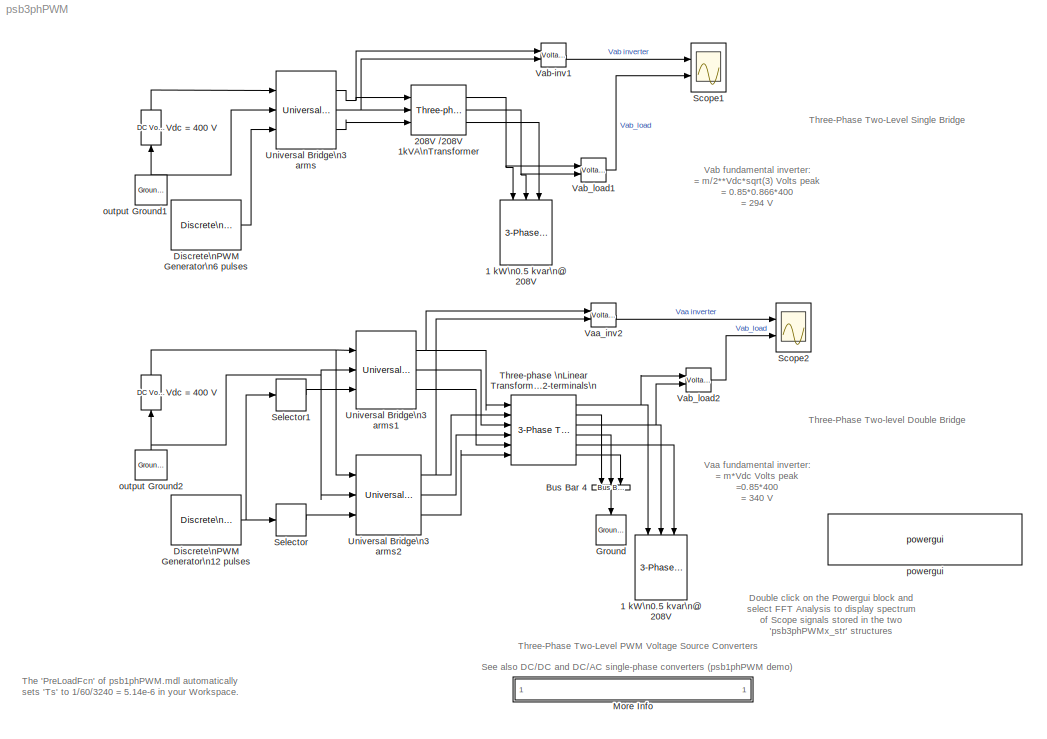
MODEL psb3phPWM
KIND model
CONFIG InitFcn = powericon('psbinitsys',bdroot);
CONFIG PreLoadFcn = assignin('base','Ts',[1/60/3240])
BLOCK [Reference] 1 kW\n0.5 kvar\n@ 208V  REF=powerlib2/Elements/3-Phase\nParallel RLC Load
  P3 = 1000
  Ports = [3]
  QC3 = 500
  QL3 = 0
  SourceBlock = powerlib2/Elements/3-Phase\nParallel RLC Load
  SourceType = 3-phase parallel RLC load
  Vpp = 208
  fn = 60
BLOCK [Reference] 1 kW\n0.5 kvar\n@ 208V   REF=powerlib2/Elements/3-Phase\nParallel RLC Load
  P3 = 1000
  Ports = [3]
  QC3 = 500
  QL3 = 0
  SourceBlock = powerlib2/Elements/3-Phase\nParallel RLC Load
  SourceType = 3-phase parallel RLC load
  Vpp = 208
  fn = 60
BLOCK [Reference] 208V //208V 1kVA\nTransformer  REF=powerlib2/Elements/Three-phase\nTransformer\n(Two Windings)
  PSBOutputType = 1111
  Ports = [3, 3]
  SourceBlock = powerlib2/Elements/Three-phase\nTransformer\n(Two Windings)
  SourceType = Three-Phase Transformer (Two Windings)
  Tag = PoWeRsYsTeMbLoCk
  hyst = off
  initialslopes = [+1 +1 +1]
  lm = 200
  matfile = 'hysteresis'
  mesure = None
  nominal = [ 1000 , 60 ]
  params1 = [ 208 , 0.002 , 0.04 ]
  params2 = [ 208 , 0.002 , 0.04 ]
  phi0 = [ 0.8 , -0.8 , 0.7 ]
  rmag = 200
  sat = [ 0,0  ;  0.005,1.2  ;  1.0,1.4 ]
  sif = off
  type1 = Delta (D1)
  type2 = Yg
  ynsat = off
BLOCK [Reference] Bus Bar 4  REF=powerlib2/Connectors/Bus Bar (thin horiz)
  PSBOutputType = 111111111111111111111111111111111111111111111111111111111111111111111111111111111111
  Ports = [3, 1]
  SourceBlock = powerlib2/Connectors/Bus Bar (thin horiz)
  SourceType = Bus Bar
  Tag = PoWeRsYsTeMbLoCk
  input = 3
  output = 1
BLOCK [Reference] Discrete\nPWM Generator\n12 pulses  REF=powerlib_extras/Discrete \nControl Blocks/Discrete\nPWM Generator
  Fc = 1080
  Freq = 60
  GeneratorMode = Double 3-arm  bridges (12 pulses)
  Internal = on
  Phase = 0
  Ports = [0, 1]
  SourceBlock = powerlib_extras/Discrete \nControl Blocks/Discrete\nPWM Generator
  SourceType = Discrete PWM Generator
  Ts = Ts
  mIndex = 0.85
BLOCK [Reference] Discrete\nPWM Generator\n6 pulses  REF=powerlib_extras/Discrete \nControl Blocks/Discrete\nPWM Generator
  Fc = 1080
  Freq = 60
  GeneratorMode = 3-arm  bridge (6 pulses)
  Internal = on
  Phase = 0
  Ports = [0, 1]
  SourceBlock = powerlib_extras/Discrete \nControl Blocks/Discrete\nPWM Generator
  SourceType = Discrete PWM Generator
  Ts = Ts
  mIndex = 0.85
BLOCK [Reference] Ground  REF=powerlib2/Connectors/Ground (input)
  Ports = [1]
  SourceBlock = powerlib2/Connectors/Ground (input)
  SourceType = Ground
  Tag = PoWeRsYsTeMbLoCk
BLOCK [SubSystem] More Info
  MaskDisplay = disp('? : Double-click here for more info')
  MaskIconFrame = off
  MaskIconOpaque = on
  MaskIconRotate = none
  MaskIconUnits = autoscale
  MinAlgLoopOccurrences = off
  Ports = []
  RTWSystemCode = Auto
  TreatAsAtomicUnit = off
BLOCK [Scope] Scope1
  DataFormat = StructureWithTime
  LimitDataPoints = off
  MaxDataPoints = 500000
  NumInputPorts = 2
  Ports = [2]
  SaveName = psb3phPWM1_str
  SaveToWorkspace = on
  TimeRange = 0.1
  YMax = 500~500
  YMin = -500~-400
  ZoomMode = yonly
BLOCK [Scope] Scope2
  DataFormat = StructureWithTime
  LimitDataPoints = off
  MaxDataPoints = 500000
  NumInputPorts = 2
  Ports = [2]
  SaveName = psb3phPWM2_str
  SaveToWorkspace = on
  TimeRange = 0.1
  YMax = 500~400
  YMin = -500~-300
  ZoomMode = yonly
BLOCK [Selector] Selector
  Elements = 7:12
  InputPortWidth = 12
  Ports = [1, 1]
BLOCK [Selector] Selector1
  Elements = 1:6
  InputPortWidth = 12
  Ports = [1, 1]
BLOCK [Reference] Three-phase \nLinear Transformer\n12-terminals\n  REF=powerlib2/Elements/3-Phase Transformer\n12-terminals
  Ports = [6, 6]
  SourceBlock = powerlib2/Elements/3-Phase Transformer\n12-terminals
  SourceType = Three-phase Linear Transformer 12-terminals
  pf = [ 1000 60 ]
  rxm = [ 200 200 ]
  urx1 = [ 240  0.002  0.04 ]
  urx2 = [ 208/sqrt(3) 0.002 0.04]
BLOCK [Reference] Universal Bridge\n3 arms  REF=powerlib2/Power\nElectronics/Universal Bridge
  Lon = 0
  PSBOutputType = 111
  Ports = [3, 3]
  Ron = 1e-4
  SourceBlock = powerlib2/Power\nElectronics/Universal Bridge
  SourceType = Universal Bridge
  Tag = PoWeRsYsTeMbLoCk
  VFs = [  1  1  ]
  Vf = .8
  arms = 3
  cf = inf
  confi = ABC as output terminals
  device = IGBT / Diodes
  gtoparameters = [ 10e-6 , 20e-6 ]
  igbtparameters = [ 1e-6 , 2e-6 ]
  injcc = 10000
  mesure = None
BLOCK [Reference] Universal Bridge\n3 arms1  REF=powerlib2/Power\nElectronics/Universal Bridge
  Lon = 0
  PSBOutputType = 111
  Ports = [3, 3]
  Ron = 1e-4
  SourceBlock = powerlib2/Power\nElectronics/Universal Bridge
  SourceType = Universal Bridge
  Tag = PoWeRsYsTeMbLoCk
  VFs = [  1  1  ]
  Vf = .8
  arms = 3
  cf = inf
  confi = ABC as output terminals
  device = IGBT / Diodes
  gtoparameters = [ 10e-6 , 20e-6 ]
  igbtparameters = [ 1e-6 , 2e-6 ]
  injcc = 10000
  mesure = None
BLOCK [Reference] Universal Bridge\n3 arms2  REF=powerlib2/Power\nElectronics/Universal Bridge
  Lon = 0
  PSBOutputType = 111
  Ports = [3, 3]
  Ron = 1e-4
  SourceBlock = powerlib2/Power\nElectronics/Universal Bridge
  SourceType = Universal Bridge
  Tag = PoWeRsYsTeMbLoCk
  VFs = [  1  1  ]
  Vf = .8
  arms = 3
  cf = inf
  confi = ABC as output terminals
  device = IGBT / Diodes
  gtoparameters = [ 10e-6 , 20e-6 ]
  igbtparameters = [ 1e-6 , 2e-6 ]
  injcc = 10000
  mesure = None
BLOCK [Reference] Vaa_inv2  REF=powerlib2/Measurements/Voltage Measurement
  OutputType = Magnitude
  PSBOutputType = 0
  PSBequivalent = 0
  PhasorSimulation = off
  Ports = [2, 1]
  SourceBlock = powerlib2/Measurements/Voltage Measurement
  SourceType = Voltage Measurement
  Tag = PoWeRsYsTeMmEaSuReMeNt
BLOCK [Reference] Vab-inv1  REF=powerlib2/Measurements/Voltage Measurement
  OutputType = Magnitude
  PSBOutputType = 0
  PSBequivalent = 0
  PhasorSimulation = off
  Ports = [2, 1]
  SourceBlock = powerlib2/Measurements/Voltage Measurement
  SourceType = Voltage Measurement
  Tag = PoWeRsYsTeMmEaSuReMeNt
BLOCK [Reference] Vab_load1  REF=powerlib2/Measurements/Voltage Measurement
  OutputType = Magnitude
  PSBOutputType = 0
  PSBequivalent = 0
  PhasorSimulation = off
  Ports = [2, 1]
  SourceBlock = powerlib2/Measurements/Voltage Measurement
  SourceType = Voltage Measurement
  Tag = PoWeRsYsTeMmEaSuReMeNt
BLOCK [Reference] Vab_load2  REF=powerlib2/Measurements/Voltage Measurement
  OutputType = Magnitude
  PSBOutputType = 0
  PSBequivalent = 0
  PhasorSimulation = off
  Ports = [2, 1]
  SourceBlock = powerlib2/Measurements/Voltage Measurement
  SourceType = Voltage Measurement
  Tag = PoWeRsYsTeMmEaSuReMeNt
BLOCK [Reference] Vdc  = 400 V  REF=powerlib2/Electrical\nSources/DC Voltage Source
  PSBOutputType = 1
  Ports = [1, 1]
  SourceBlock = powerlib2/Electrical\nSources/DC Voltage Source
  SourceType = DC Voltage Source
  Tag = PoWeRsYsTeMbLoCk
  V = 400
  mesure = None
BLOCK [Reference] Vdc  = 400 V   REF=powerlib2/Electrical\nSources/DC Voltage Source
  PSBOutputType = 1
  Ports = [1, 1]
  SourceBlock = powerlib2/Electrical\nSources/DC Voltage Source
  SourceType = DC Voltage Source
  Tag = PoWeRsYsTeMbLoCk
  V = 400
  mesure = None
BLOCK [Reference] output Ground1  REF=powerlib2/Connectors/Ground (output)
  PSBOutputType = 1
  Ports = [0, 1]
  SourceBlock = powerlib2/Connectors/Ground (output)
  SourceType = Ground
  Tag = PoWeRsYsTeMbLoCk
BLOCK [Reference] output Ground2  REF=powerlib2/Connectors/Ground (output)
  PSBOutputType = 1
  Ports = [0, 1]
  SourceBlock = powerlib2/Connectors/Ground (output)
  SourceType = Ground
  Tag = PoWeRsYsTeMbLoCk
BLOCK [Reference] powergui  REF=powerlib2/powergui
  DisplayStyle = off
  Frange = [0:2:500]
  FreqAxis = off
  MaxFrequency = 5000
  Ports = []
  RmsSteady = 1
  SourceBlock = powerlib2/powergui
  SourceType = PSB option menu block
  StartTime = 0.1-2/60
  Ts = Ts
  Xlog = off
  Ylog = off
  ZoomFFT = on
  cycles = 2
  display = off
  echomessages = off
  frequency = 60
  frequencyindice = 1
  frequencyindicesteady = 1
  fundamental = 60
  methode = off
  save = off
  structure = psb3phPWM1_str
  variable = ZData
ANNOTATION (root): Double click on the Powergui block and\nselect FFT Analysis to display spectrum\nof Scope signals stored in the two\n'psb3phPWMx_str' structures
ANNOTATION (root): See also DC/DC and DC/AC single-phase converters (psb1phPWM demo)
ANNOTATION (root): The 'PreLoadFcn' of psb1phPWM.mdl automatically \nsets 'Ts' to 1/60/3240 = 5.14e-6 in your Workspace.
ANNOTATION (root): Three-Phase Two-Level PWM Voltage Source Converters
ANNOTATION (root): Three-Phase Two-Level Single Bridge
ANNOTATION (root): Three-Phase Two-level Double Bridge
ANNOTATION (root): Vaa fundamental inverter: \n= m*Vdc Volts peak\n=0.85*400 \n= 340 V
ANNOTATION (root): Vab fundamental inverter:\n= m/2**Vdc*sqrt(3) Volts peak\n= 0.85*0.866*400 \n= 294 V
ANNOTATION More Info: Circuit Description
ANNOTATION More Info: Demonstration
ANNOTATION More Info: G. Sybille and P. Giroux (Hydro-Quebec)
ANNOTATION More Info: Run the simulation and observe the following two waveforms on the Scope blocks:\nVoltage generated by the PWM inverter (trace 1), load voltage (trace 2)\n\nOnce the simulation is completed, open the Powergui and select 'FFT Analysis' to display the 0-5000 Hz frequency spectrum of signals saved \nin the two 'psb3phPWMx_str' structures. The FFT will be performed on a 2-cycle window starting at t = 0...<+956ch>
ANNOTATION More Info: The system consists of two independant circuits illustrating two three-phase two-level PWM voltage source inverters.\nEach inverter feeds an AC load (1 kW, 500 var 60Hz @ 208V rms) through a three-phase transformer.\nBoth converters are controlled in open loop with the Discrete PWM Generator block available in the Extras/Discrete Control Blocks library.\nThe two circuits use the same DC voltage (V...<+657ch>
ANNOTATION More Info: This demonstration illustrates use of the Universal Bridge and\nDiscrete PWM Pulse Generator blocks. It also demonstrates \nharmonic analysis of PWM waveforms using the Powergui/FFT tool.
NET 208V //208V 1kVA\nTransformer:1 -> 1 kW\n0.5 kvar\n@ 208V:1, Vab_load1:1
NET 208V //208V 1kVA\nTransformer:2 -> 1 kW\n0.5 kvar\n@ 208V:2, Vab_load1:2
LINE 208V //208V 1kVA\nTransformer:3 -> 1 kW\n0.5 kvar\n@ 208V:3
LINE Bus Bar 4:1 -> Ground:1
NET Discrete\nPWM Generator\n12 pulses:1 -> Selector1:1, Selector:1
LINE Discrete\nPWM Generator\n6 pulses:1 -> Universal Bridge\n3 arms:3
LINE Selector1:1 -> Universal Bridge\n3 arms1:3
LINE Selector:1 -> Universal Bridge\n3 arms2:3
NET Three-phase \nLinear Transformer\n12-terminals\n:1 -> 1 kW\n0.5 kvar\n@ 208V :1, Vab_load2:1
LINE Three-phase \nLinear Transformer\n12-terminals\n:2 -> Bus Bar 4:1
NET Three-phase \nLinear Transformer\n12-terminals\n:3 -> 1 kW\n0.5 kvar\n@ 208V :2, Vab_load2:2
LINE Three-phase \nLinear Transformer\n12-terminals\n:4 -> Bus Bar 4:2
LINE Three-phase \nLinear Transformer\n12-terminals\n:5 -> 1 kW\n0.5 kvar\n@ 208V :3
LINE Three-phase \nLinear Transformer\n12-terminals\n:6 -> Bus Bar 4:3
NET Universal Bridge\n3 arms1:1 -> Three-phase \nLinear Transformer\n12-terminals\n:1, Vaa_inv2:1
LINE Universal Bridge\n3 arms1:2 -> Three-phase \nLinear Transformer\n12-terminals\n:3
LINE Universal Bridge\n3 arms1:3 -> Three-phase \nLinear Transformer\n12-terminals\n:5
NET Universal Bridge\n3 arms2:1 -> Three-phase \nLinear Transformer\n12-terminals\n:2, Vaa_inv2:2
LINE Universal Bridge\n3 arms2:2 -> Three-phase \nLinear Transformer\n12-terminals\n:4
LINE Universal Bridge\n3 arms2:3 -> Three-phase \nLinear Transformer\n12-terminals\n:6
NET Universal Bridge\n3 arms:1 -> 208V //208V 1kVA\nTransformer:1, Vab-inv1:1
NET Universal Bridge\n3 arms:2 -> 208V //208V 1kVA\nTransformer:2, Vab-inv1:2
LINE Universal Bridge\n3 arms:3 -> 208V //208V 1kVA\nTransformer:3
LINE Vaa_inv2:1 -> Scope2:1
LINE Vab-inv1:1 -> Scope1:1
LINE Vab_load1:1 -> Scope1:2
LINE Vab_load2:1 -> Scope2:2
NET Vdc  = 400 V :1 -> Universal Bridge\n3 arms1:1, Universal Bridge\n3 arms2:1
LINE Vdc  = 400 V:1 -> Universal Bridge\n3 arms:1
NET output Ground1:1 -> Universal Bridge\n3 arms:2, Vdc  = 400 V:1
NET output Ground2:1 -> Universal Bridge\n3 arms1:2, Universal Bridge\n3 arms2:2, Vdc  = 400 V :1
note: NET lines group one-source signal fan-out (src -> all destinations, sorted); 1:1 wires keep LINE
